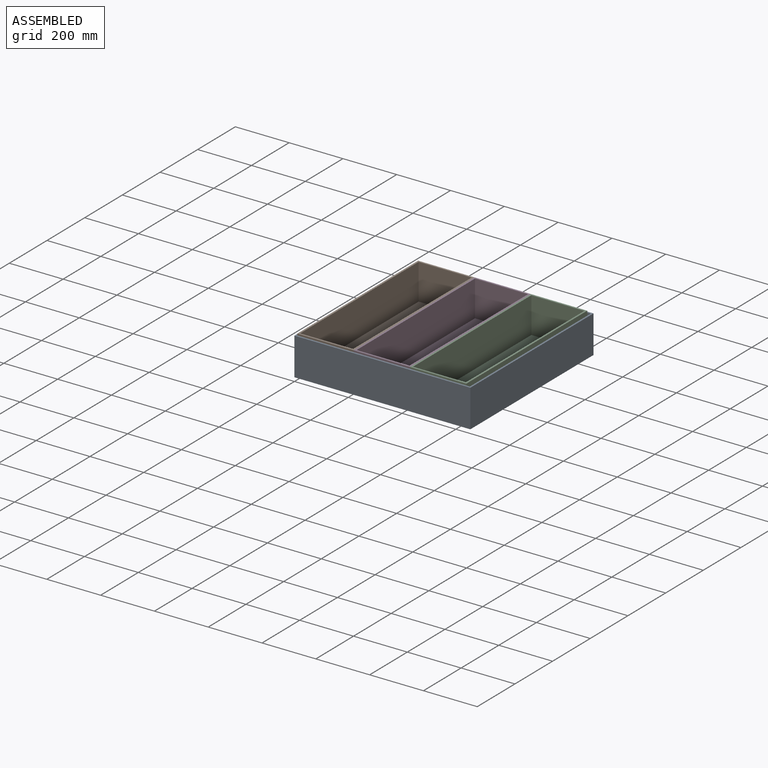
[diagram: assembled view]
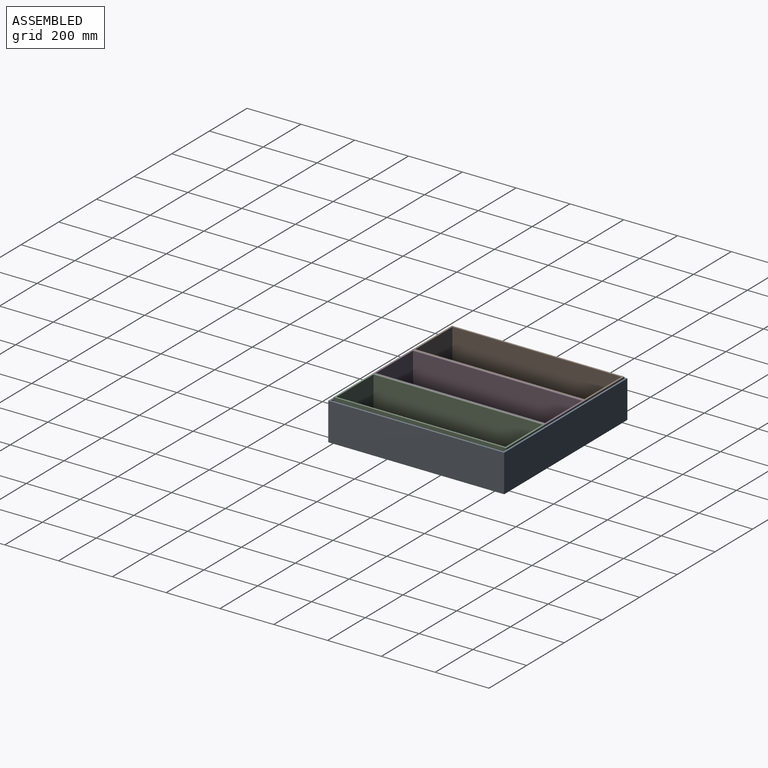
[diagram: assembled view, second angle]
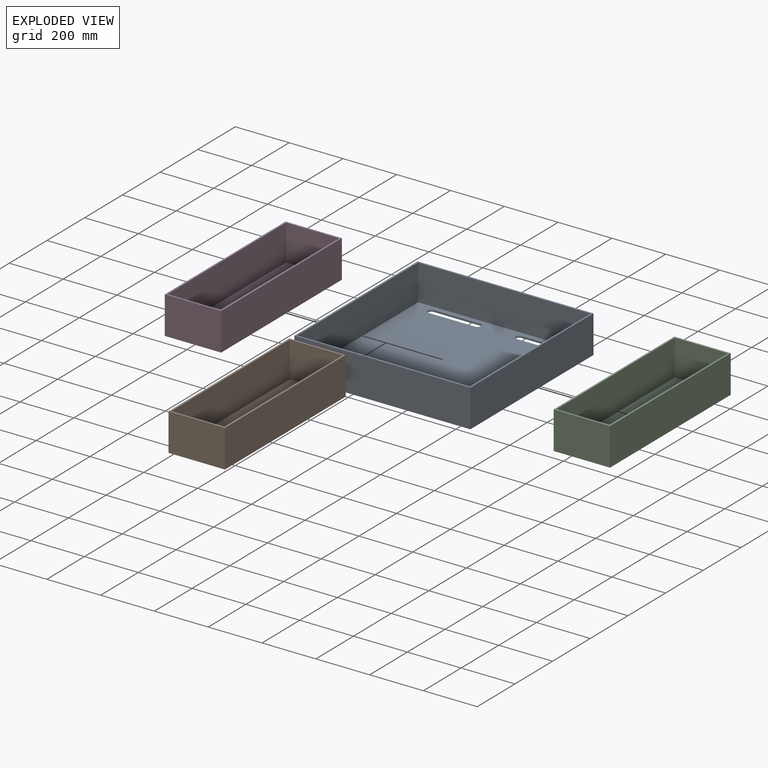
[diagram: exploded view]
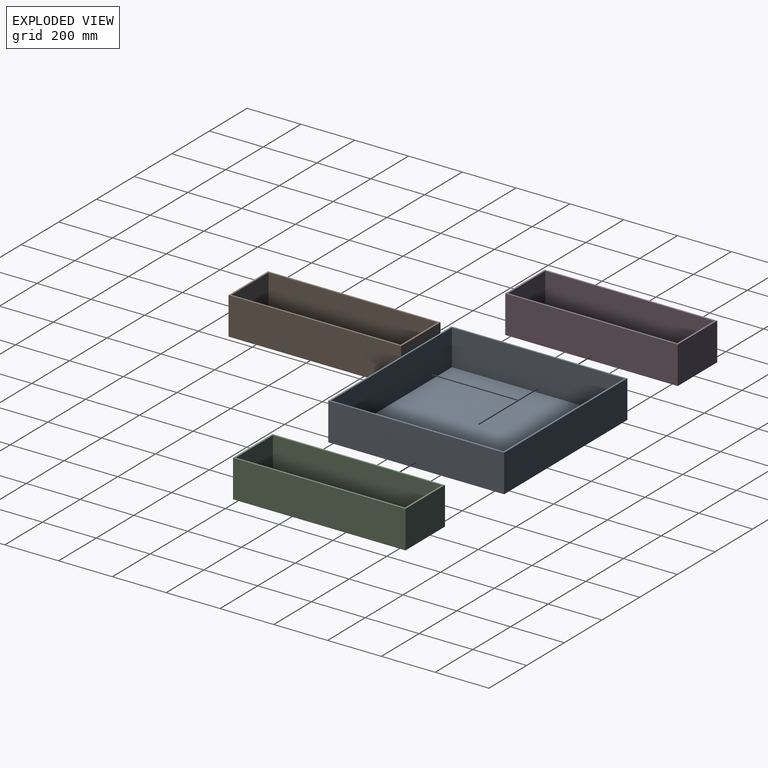
[diagram: exploded view, second angle]
ASSEMBLY  parts=4 mates=3
PART A: 19 faces, bbox 654.1x654.1x139.7 mm
  f0: plane 654.05x654.05mm, normal (0,0,-1), area 418058.3mm2, adj f3,f4,f5,f6,f11,f12,f13,f14
  f1: plane 641.35x641.35mm, normal (0,0,1), area 401606.7mm2, adj f7,f8,f9,f10,f11,f12,f13,f14
  f2: plane 654.05x654.05mm, normal (0,0,1), area 16451.6mm2, adj f3,f4,f5,f6,f7,f8,f9,f10
  f3: plane 654.05x139.7mm, normal (-1,0,0), area 91370.8mm2, adj f0,f2,f4,f6
  f4: plane 654.05x139.7mm, normal (0,-1,0), area 91370.8mm2, adj f0,f2,f3,f5
  f5: plane 654.05x139.7mm, normal (1,0,0), area 91370.8mm2, adj f0,f2,f4,f6
  f6: plane 654.05x139.7mm, normal (0,1,0), area 91370.8mm2, adj f0,f2,f3,f5
  f7: plane 641.35x133.35mm, normal (1,0,0), area 85524mm2, adj f1,f2,f8,f10
  f8: plane 641.35x133.35mm, normal (0,1,0), area 85524mm2, adj f1,f2,f7,f9
  f9: plane 641.35x133.35mm, normal (-1,0,0), area 85524mm2, adj f1,f2,f8,f10
  f10: plane 641.35x133.35mm, normal (0,-1,0), area 85524mm2, adj f1,f2,f7,f9
  f11: cylinder r=12.7mm len=25.4mm, axis (0,0,-1), area 253.4mm2, adj f0,f1,f12,f14
  f12: plane 171.45x6.35mm, normal (0,-1,0), area 1088.7mm2, adj f0,f1,f11,f13
  f13: cylinder r=12.7mm len=25.4mm, axis (0,0,-1), area 253.4mm2, adj f0,f1,f12,f14
  f14: plane 171.45x6.35mm, normal (0,1,0), area 1088.7mm2, adj f0,f1,f11,f13
  f15: cylinder r=12.7mm len=25.4mm, axis (0,0,-1), area 253.4mm2, adj f0,f1,f16,f18
  f16: plane 171.45x6.35mm, normal (0,1,0), area 1088.7mm2, adj f0,f1,f15,f17
  f17: cylinder r=12.7mm len=25.4mm, axis (0,0,-1), area 253.4mm2, adj f0,f1,f16,f18
  f18: plane 171.45x6.35mm, normal (0,-1,0), area 1088.7mm2, adj f0,f1,f15,f17
PART B: 19 faces, bbox 209.6x641.4x139.7 mm
  f0: plane 641.35x209.55mm, normal (0,0,-1), area 125962.1mm2, adj f3,f4,f5,f6,f11,f12,f13,f14
  f1: plane 628.65x196.85mm, normal (0,0,1), area 115317mm2, adj f7,f8,f9,f10,f11,f12,f13,f14
  f2: plane 641.35x209.55mm, normal (0,0,1), area 10645.1mm2, adj f3,f4,f5,f6,f7,f8,f9,f10
  f3: plane 641.35x139.7mm, normal (-1,0,0), area 89596.6mm2, adj f0,f2,f4,f6
  f4: plane 209.55x139.7mm, normal (0,-1,0), area 29274.1mm2, adj f0,f2,f3,f5
  f5: plane 641.35x139.7mm, normal (1,0,0), area 89596.6mm2, adj f0,f2,f4,f6
  f6: plane 209.55x139.7mm, normal (0,1,0), area 29274.1mm2, adj f0,f2,f3,f5
  f7: plane 628.65x133.35mm, normal (1,0,0), area 83830.5mm2, adj f1,f2,f8,f10
  f8: plane 196.85x133.35mm, normal (0,1,0), area 26249.9mm2, adj f1,f2,f7,f9
  f9: plane 628.65x133.35mm, normal (-1,0,0), area 83830.5mm2, adj f1,f2,f8,f10
  f10: plane 196.85x133.35mm, normal (0,-1,0), area 26249.9mm2, adj f1,f2,f7,f9
  f11: cylinder r=12.7mm len=25.4mm, axis (0,0,-1), area 253.4mm2, adj f0,f1,f12,f14
  f12: plane 146.05x6.35mm, normal (-1,0,0), area 927.4mm2, adj f0,f1,f11,f13
  f13: cylinder r=12.7mm len=25.4mm, axis (0,0,-1), area 253.4mm2, adj f0,f1,f12,f14
  f14: plane 146.05x6.35mm, normal (1,0,0), area 927.4mm2, adj f0,f1,f11,f13
  f15: plane 146.05x6.35mm, normal (-1,0,0), area 927.4mm2, adj f0,f1,f16,f18
  f16: cylinder r=12.7mm len=25.4mm, axis (0,0,-1), area 253.4mm2, adj f0,f1,f15,f17
  f17: plane 146.05x6.35mm, normal (1,0,0), area 927.4mm2, adj f0,f1,f16,f18
  f18: cylinder r=12.7mm len=25.4mm, axis (0,0,-1), area 253.4mm2, adj f0,f1,f15,f17
PART C: same geometry as B
PART D: same geometry as B
PLACE A at identity
PLACE B t=(6.35,6.35,6.35)mm
PLACE C t=(425.45,6.35,6.35)mm
PLACE D t=(215.9,6.35,6.35)mm
MATE planar B.f6 <-> A.f10  axis (0,1,0) through (111.12,647.7,76.2)mm
MATE planar B.f3 <-> A.f7  axis (-1,0,0) through (6.35,327.02,76.2)mm
MATE planar B.f0 <-> A.f1  axis (0,0,-1) through (111.13,327.02,6.35)mm
